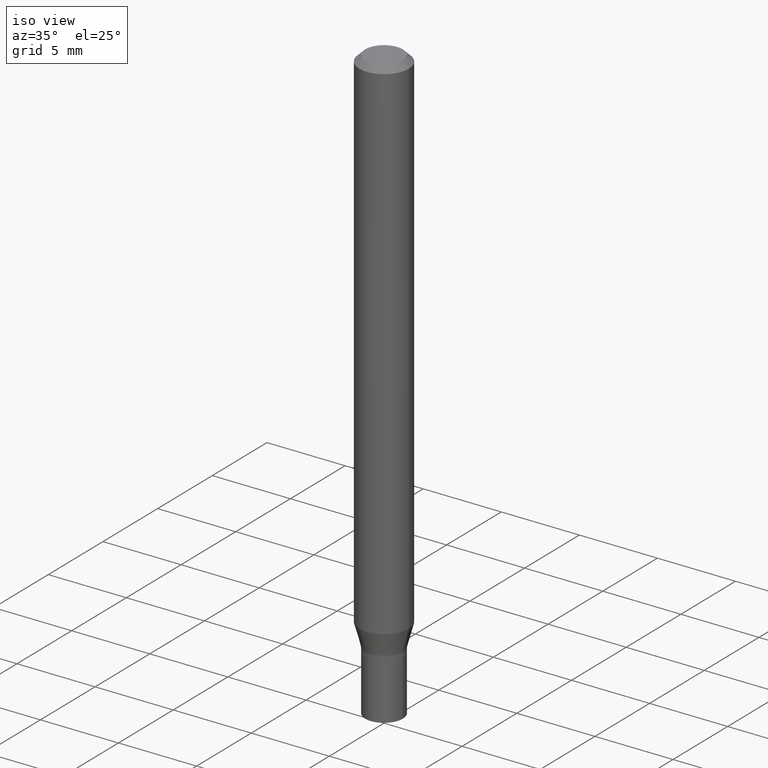
[diagram: clean part render]
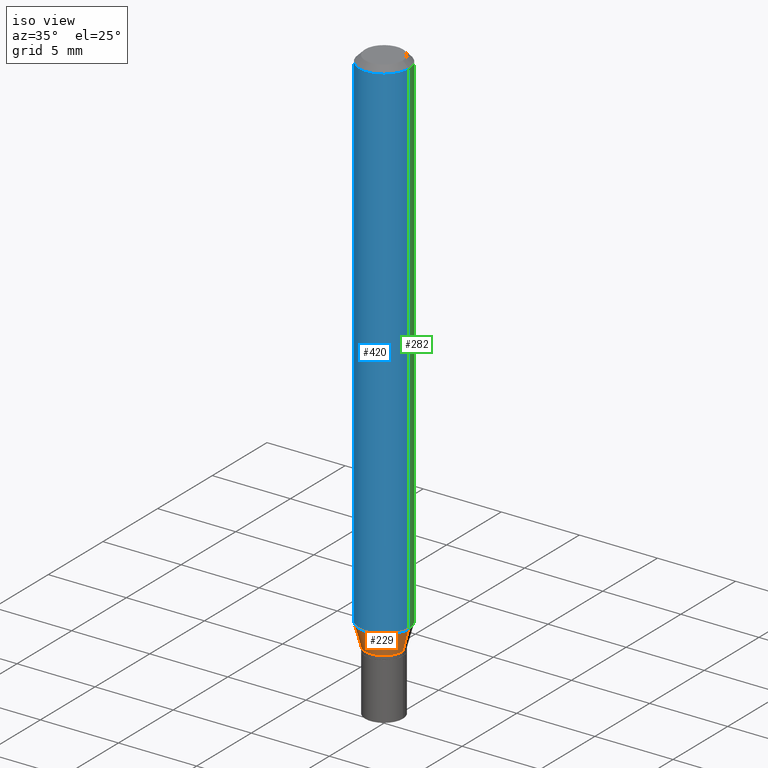
[diagram: same view with three faces highlighted in distinct colors, each labeled with its STEP entity id]
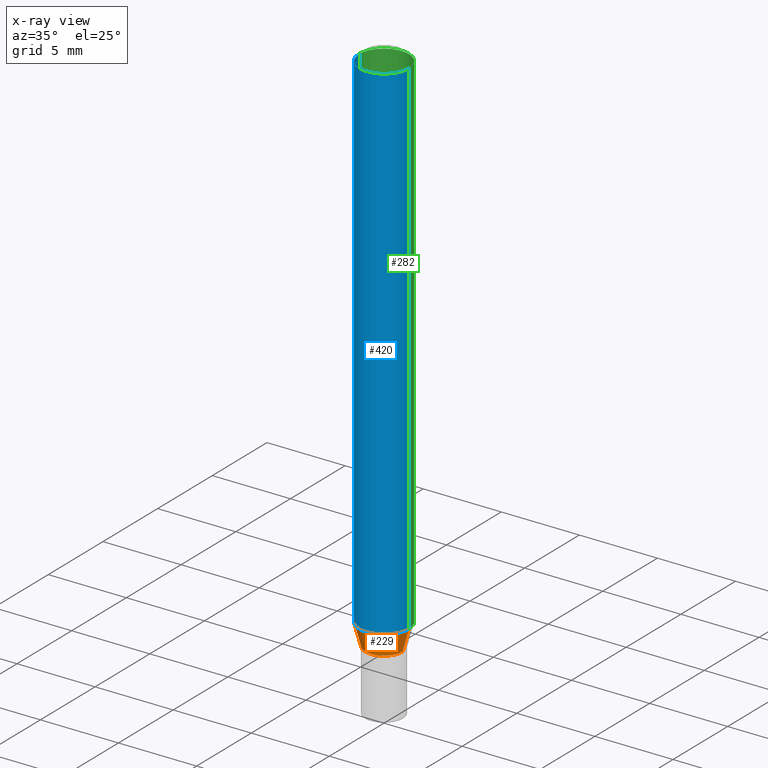
[diagram: x-ray of the same camera — body ghosted, the three highlighted faces saturated]
A machine part, iso view with three faces highlighted in distinct colors.
The next image is the same camera in x-ray (body ghosted, the three faces saturated) — at least one of them is partly hidden behind the body in this view.
Their STEP definitions:

[orange] entity #229 — the highlighted conical surface has half-angle 15 deg.
#6 = ORIENTED_EDGE ( 'NONE', *, *, #265, .T. ) ;
#8 = DIRECTION ( 'NONE',  ( 1.000000000000000000, -6.982962677686262766E-15, 0.000000000000000000 ) ) ;
#23 = CARTESIAN_POINT ( 'NONE',  ( 3.294046481931379390E-29, -4.703025363421717574E-15, -1.347000000000000197 ) ) ;
#24 = ORIENTED_EDGE ( 'NONE', *, *, #139, .F. ) ;
#33 = CIRCLE ( 'NONE', #303, 0.04749999999999993117 ) ;
#39 = LINE ( 'NONE', #174, #41 ) ;
#41 = VECTOR ( 'NONE', #397, 39.37007874015748143 ) ;
#42 = CARTESIAN_POINT ( 'NONE',  ( -0.04749999999999993117, -4.214498965626852086E-15, -1.347000000000000197 ) ) ;
#57 = VERTEX_POINT ( 'NONE', #338 ) ;
#97 = DIRECTION ( 'NONE',  ( 1.000000000000000000, -6.982962677686271444E-15, 0.000000000000000000 ) ) ;
#102 = ORIENTED_EDGE ( 'NONE', *, *, #339, .F. ) ;
#127 = VERTEX_POINT ( 'NONE', #42 ) ;
#139 = EDGE_CURVE ( 'NONE', #127, #178, #39, .T. ) ;
#158 = CONICAL_SURFACE ( 'NONE', #357, 0.04749999999999993117, 0.2617993877991482421 ) ;
#174 = CARTESIAN_POINT ( 'NONE',  ( -0.04749999999999993117, -4.365517563935670870E-15, -1.347000000000000197 ) ) ;
#178 = VERTEX_POINT ( 'NONE', #290 ) ;
#213 = VERTEX_POINT ( 'NONE', #255 ) ;
#222 = CARTESIAN_POINT ( 'NONE',  ( 0.04749999999999993117, -5.034716090611815085E-15, -1.347000000000000197 ) ) ;
#229 = ADVANCED_FACE ( 'NONE', ( #372 ), #158, .T. ) ;
#235 = CARTESIAN_POINT ( 'NONE',  ( 3.294046481931379390E-29, -4.703025363421717574E-15, -1.347000000000000197 ) ) ;
#239 = AXIS2_PLACEMENT_3D ( 'NONE', #299, #333, #8 ) ;
#250 = VECTOR ( 'NONE', #251, 39.37007874015748143 ) ;
#251 = DIRECTION ( 'NONE',  ( 0.2588190451025196293, 1.565188264969636167E-15, 0.9659258262890685343 ) ) ;
#255 = CARTESIAN_POINT ( 'NONE',  ( 0.04749999999999993117, -5.034716090611815085E-15, -1.347000000000000197 ) ) ;
#265 = EDGE_CURVE ( 'NONE', #127, #213, #33, .T. ) ;
#270 = DIRECTION ( 'NONE',  ( -2.445468806185136597E-29, 3.491481338843145583E-15, 1.000000000000000000 ) ) ;
#290 = CARTESIAN_POINT ( 'NONE',  ( -0.06250000000000000000, -4.063480367318034881E-15, -1.291019237886466442 ) ) ;
#293 = EDGE_CURVE ( 'NONE', #213, #57, #342, .T. ) ;
#299 = CARTESIAN_POINT ( 'NONE',  ( 3.157147274436261961E-29, -4.507569577168097497E-15, -1.291019237886466442 ) ) ;
#303 = AXIS2_PLACEMENT_3D ( 'NONE', #235, #270, #390 ) ;
#333 = DIRECTION ( 'NONE',  ( -2.445468806185136597E-29, 3.491481338843145583E-15, 1.000000000000000000 ) ) ;
#338 = CARTESIAN_POINT ( 'NONE',  ( 0.06250000000000000000, -4.944004744523489167E-15, -1.291019237886466442 ) ) ;
#339 = EDGE_CURVE ( 'NONE', #178, #57, #364, .T. ) ;
#342 = LINE ( 'NONE', #222, #250 ) ;
#357 = AXIS2_PLACEMENT_3D ( 'NONE', #23, #432, #97 ) ;
#364 = CIRCLE ( 'NONE', #239, 0.06250000000000000000 ) ;
#372 = FACE_OUTER_BOUND ( 'NONE', #386, .T. ) ;
#386 = EDGE_LOOP ( 'NONE', ( #24, #6, #435, #102 ) ) ;
#390 = DIRECTION ( 'NONE',  ( 1.000000000000000000, -6.982962677686271444E-15, 0.000000000000000000 ) ) ;
#397 = DIRECTION ( 'NONE',  ( -0.2588190451025196293, 5.211531920934539209E-15, 0.9659258262890685343 ) ) ;
#432 = DIRECTION ( 'NONE',  ( -2.445468806185136597E-29, 3.491481338843145583E-15, 1.000000000000000000 ) ) ;
#435 = ORIENTED_EDGE ( 'NONE', *, *, #293, .T. ) ;

[blue] entity #420 — the highlighted cylindrical surface (edge-blend (fillet) strip) has radius 1.5875 mm, axis along (-0, 0, 1).
#1 = CIRCLE ( 'NONE', #263, 0.06250000000000000000 ) ;
#5 = DIRECTION ( 'NONE',  ( -2.445468806185136877E-29, 3.491481338843145188E-15, 1.000000000000000000 ) ) ;
#8 = DIRECTION ( 'NONE',  ( 1.000000000000000000, -6.982962677686262766E-15, 0.000000000000000000 ) ) ;
#17 = DIRECTION ( 'NONE',  ( 1.000000000000000000, -6.982962677686266711E-15, 4.876176775795935793E-29 ) ) ;
#49 = CARTESIAN_POINT ( 'NONE',  ( 3.668203209277705088E-31, -5.237222008264718399E-17, -0.01499999999999999944 ) ) ;
#57 = VERTEX_POINT ( 'NONE', #338 ) ;
#143 = FACE_OUTER_BOUND ( 'NONE', #384, .T. ) ;
#144 = VERTEX_POINT ( 'NONE', #442 ) ;
#177 = CARTESIAN_POINT ( 'NONE',  ( -0.06250000000000000000, 4.440892098500626162E-16, -3.074334431409316114E-30 ) ) ;
#178 = VERTEX_POINT ( 'NONE', #290 ) ;
#189 = CARTESIAN_POINT ( 'NONE',  ( 0.06250000000000000000, -4.364351673553916694E-16, 3.047610484872459871E-30 ) ) ;
#196 = VECTOR ( 'NONE', #5, 39.37007874015748143 ) ;
#225 = ORIENTED_EDGE ( 'NONE', *, *, #345, .F. ) ;
#233 = ORIENTED_EDGE ( 'NONE', *, *, #398, .T. ) ;
#239 = AXIS2_PLACEMENT_3D ( 'NONE', #299, #333, #8 ) ;
#247 = CARTESIAN_POINT ( 'NONE',  ( 0.06250000000000000000, -4.888073874380388472E-16, -0.01499999999999999944 ) ) ;
#256 = DIRECTION ( 'NONE',  ( 1.000000000000000000, -6.982962677686266711E-15, 0.000000000000000000 ) ) ;
#263 = AXIS2_PLACEMENT_3D ( 'NONE', #49, #439, #256 ) ;
#264 = DIRECTION ( 'NONE',  ( -2.445468806185136597E-29, 3.491481338843145583E-15, 1.000000000000000000 ) ) ;
#290 = CARTESIAN_POINT ( 'NONE',  ( -0.06250000000000000000, -4.063480367318034881E-15, -1.291019237886466442 ) ) ;
#297 = VERTEX_POINT ( 'NONE', #247 ) ;
#299 = CARTESIAN_POINT ( 'NONE',  ( 3.157147274436261961E-29, -4.507569577168097497E-15, -1.291019237886466442 ) ) ;
#302 = CYLINDRICAL_SURFACE ( 'NONE', #337, 0.06250000000000000000 ) ;
#311 = VECTOR ( 'NONE', #330, 39.37007874015748143 ) ;
#328 = ORIENTED_EDGE ( 'NONE', *, *, #382, .F. ) ;
#330 = DIRECTION ( 'NONE',  ( -2.445468806185136877E-29, 3.491481338843145188E-15, 1.000000000000000000 ) ) ;
#333 = DIRECTION ( 'NONE',  ( -2.445468806185136597E-29, 3.491481338843145583E-15, 1.000000000000000000 ) ) ;
#337 = AXIS2_PLACEMENT_3D ( 'NONE', #450, #264, #17 ) ;
#338 = CARTESIAN_POINT ( 'NONE',  ( 0.06250000000000000000, -4.944004744523489167E-15, -1.291019237886466442 ) ) ;
#339 = EDGE_CURVE ( 'NONE', #178, #57, #364, .T. ) ;
#345 = EDGE_CURVE ( 'NONE', #144, #297, #1, .T. ) ;
#364 = CIRCLE ( 'NONE', #239, 0.06250000000000000000 ) ;
#365 = LINE ( 'NONE', #189, #196 ) ;
#382 = EDGE_CURVE ( 'NONE', #178, #144, #447, .T. ) ;
#384 = EDGE_LOOP ( 'NONE', ( #328, #461, #233, #225 ) ) ;
#398 = EDGE_CURVE ( 'NONE', #57, #297, #365, .T. ) ;
#420 = ADVANCED_FACE ( 'NONE', ( #143 ), #302, .T. ) ;
#439 = DIRECTION ( 'NONE',  ( -2.445468806185136597E-29, 3.491481338843145583E-15, 1.000000000000000000 ) ) ;
#442 = CARTESIAN_POINT ( 'NONE',  ( -0.06250000000000000000, -1.835881688775309869E-15, -0.01499999999999999944 ) ) ;
#447 = LINE ( 'NONE', #177, #311 ) ;
#450 = CARTESIAN_POINT ( 'NONE',  ( 0.000000000000000000, 0.000000000000000000, 0.000000000000000000 ) ) ;
#461 = ORIENTED_EDGE ( 'NONE', *, *, #339, .T. ) ;

[green] entity #282 — the highlighted cylindrical surface (edge-blend (fillet) strip) has radius 1.5875 mm, axis along (-0, 0, 1).
#5 = DIRECTION ( 'NONE',  ( -2.445468806185136877E-29, 3.491481338843145188E-15, 1.000000000000000000 ) ) ;
#26 = ORIENTED_EDGE ( 'NONE', *, *, #398, .F. ) ;
#30 = CARTESIAN_POINT ( 'NONE',  ( 0.000000000000000000, 0.000000000000000000, 0.000000000000000000 ) ) ;
#40 = CYLINDRICAL_SURFACE ( 'NONE', #95, 0.06250000000000000000 ) ;
#57 = VERTEX_POINT ( 'NONE', #338 ) ;
#95 = AXIS2_PLACEMENT_3D ( 'NONE', #30, #169, #319 ) ;
#144 = VERTEX_POINT ( 'NONE', #442 ) ;
#164 = EDGE_CURVE ( 'NONE', #57, #178, #175, .T. ) ;
#169 = DIRECTION ( 'NONE',  ( -2.445468806185136597E-29, 3.491481338843145583E-15, 1.000000000000000000 ) ) ;
#175 = CIRCLE ( 'NONE', #310, 0.06250000000000000000 ) ;
#177 = CARTESIAN_POINT ( 'NONE',  ( -0.06250000000000000000, 4.440892098500626162E-16, -3.074334431409316114E-30 ) ) ;
#178 = VERTEX_POINT ( 'NONE', #290 ) ;
#182 = ORIENTED_EDGE ( 'NONE', *, *, #164, .T. ) ;
#189 = CARTESIAN_POINT ( 'NONE',  ( 0.06250000000000000000, -4.364351673553916694E-16, 3.047610484872459871E-30 ) ) ;
#196 = VECTOR ( 'NONE', #5, 39.37007874015748143 ) ;
#201 = EDGE_CURVE ( 'NONE', #297, #144, #266, .T. ) ;
#202 = CARTESIAN_POINT ( 'NONE',  ( 3.668203209277705088E-31, -5.237222008264718399E-17, -0.01499999999999999944 ) ) ;
#206 = DIRECTION ( 'NONE',  ( 1.000000000000000000, -6.982962677686262766E-15, 0.000000000000000000 ) ) ;
#245 = FACE_OUTER_BOUND ( 'NONE', #252, .T. ) ;
#246 = DIRECTION ( 'NONE',  ( -2.445468806185136597E-29, 3.491481338843145583E-15, 1.000000000000000000 ) ) ;
#247 = CARTESIAN_POINT ( 'NONE',  ( 0.06250000000000000000, -4.888073874380388472E-16, -0.01499999999999999944 ) ) ;
#252 = EDGE_LOOP ( 'NONE', ( #182, #279, #366, #26 ) ) ;
#266 = CIRCLE ( 'NONE', #285, 0.06250000000000000000 ) ;
#279 = ORIENTED_EDGE ( 'NONE', *, *, #382, .T. ) ;
#281 = DIRECTION ( 'NONE',  ( -2.445468806185136597E-29, 3.491481338843145583E-15, 1.000000000000000000 ) ) ;
#282 = ADVANCED_FACE ( 'NONE', ( #245 ), #40, .T. ) ;
#285 = AXIS2_PLACEMENT_3D ( 'NONE', #202, #281, #370 ) ;
#290 = CARTESIAN_POINT ( 'NONE',  ( -0.06250000000000000000, -4.063480367318034881E-15, -1.291019237886466442 ) ) ;
#297 = VERTEX_POINT ( 'NONE', #247 ) ;
#310 = AXIS2_PLACEMENT_3D ( 'NONE', #334, #246, #206 ) ;
#311 = VECTOR ( 'NONE', #330, 39.37007874015748143 ) ;
#319 = DIRECTION ( 'NONE',  ( 1.000000000000000000, -6.982962677686266711E-15, 4.876176775795935793E-29 ) ) ;
#330 = DIRECTION ( 'NONE',  ( -2.445468806185136877E-29, 3.491481338843145188E-15, 1.000000000000000000 ) ) ;
#334 = CARTESIAN_POINT ( 'NONE',  ( 3.157147274436261961E-29, -4.507569577168097497E-15, -1.291019237886466442 ) ) ;
#338 = CARTESIAN_POINT ( 'NONE',  ( 0.06250000000000000000, -4.944004744523489167E-15, -1.291019237886466442 ) ) ;
#365 = LINE ( 'NONE', #189, #196 ) ;
#366 = ORIENTED_EDGE ( 'NONE', *, *, #201, .F. ) ;
#370 = DIRECTION ( 'NONE',  ( 1.000000000000000000, -6.982962677686266711E-15, 0.000000000000000000 ) ) ;
#382 = EDGE_CURVE ( 'NONE', #178, #144, #447, .T. ) ;
#398 = EDGE_CURVE ( 'NONE', #57, #297, #365, .T. ) ;
#442 = CARTESIAN_POINT ( 'NONE',  ( -0.06250000000000000000, -1.835881688775309869E-15, -0.01499999999999999944 ) ) ;
#447 = LINE ( 'NONE', #177, #311 ) ;